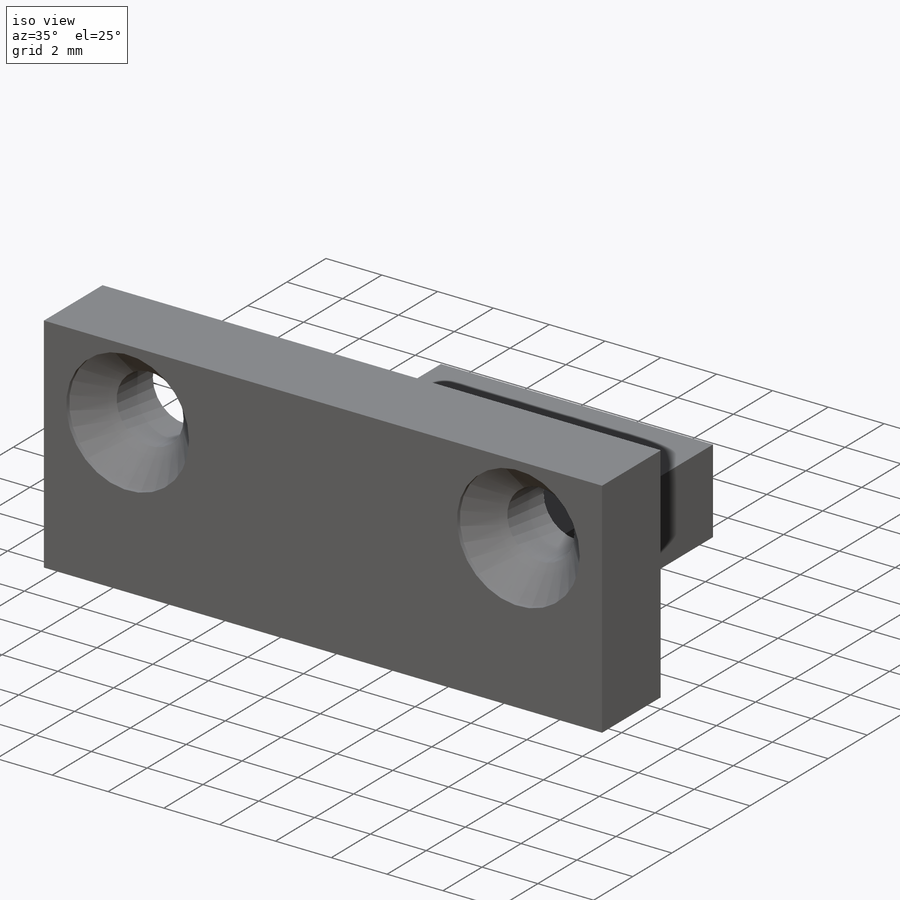
[diagram: iso view]
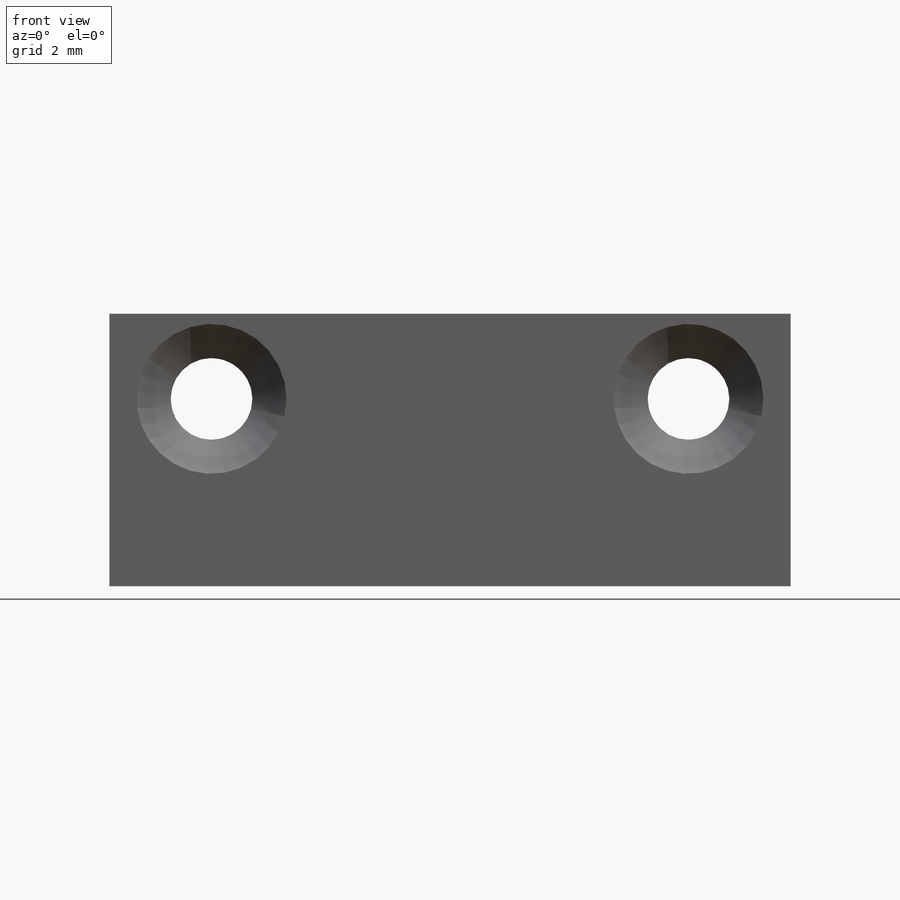
[diagram: front view]
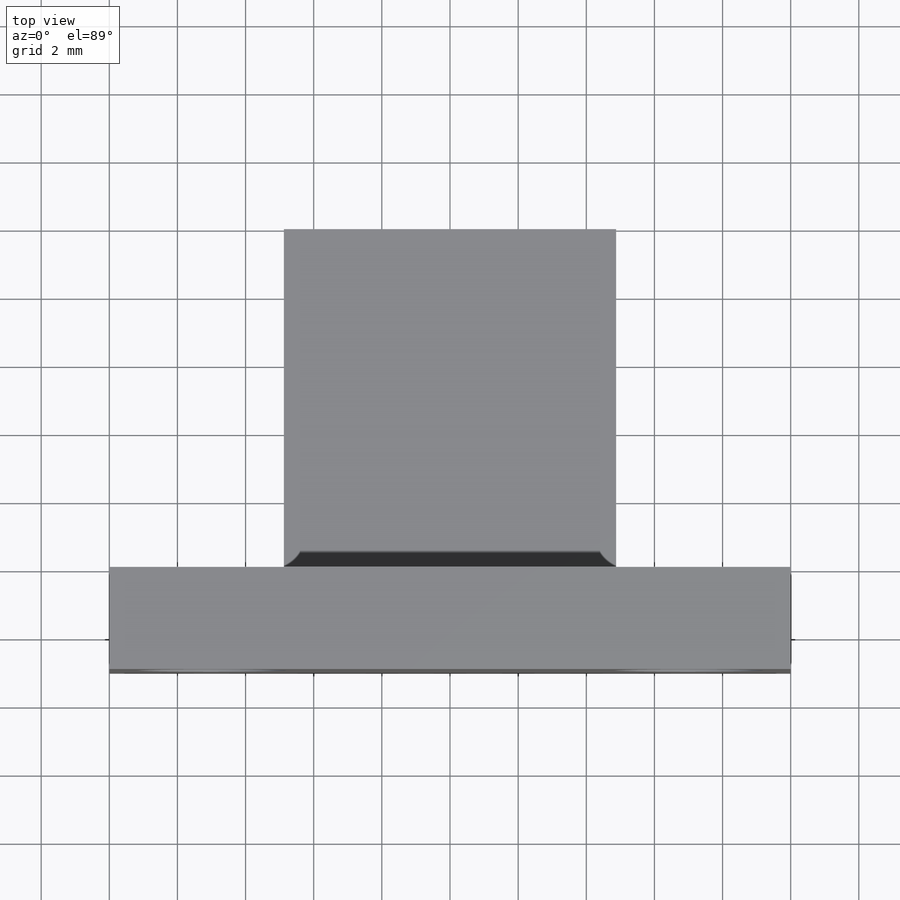
[diagram: top view]
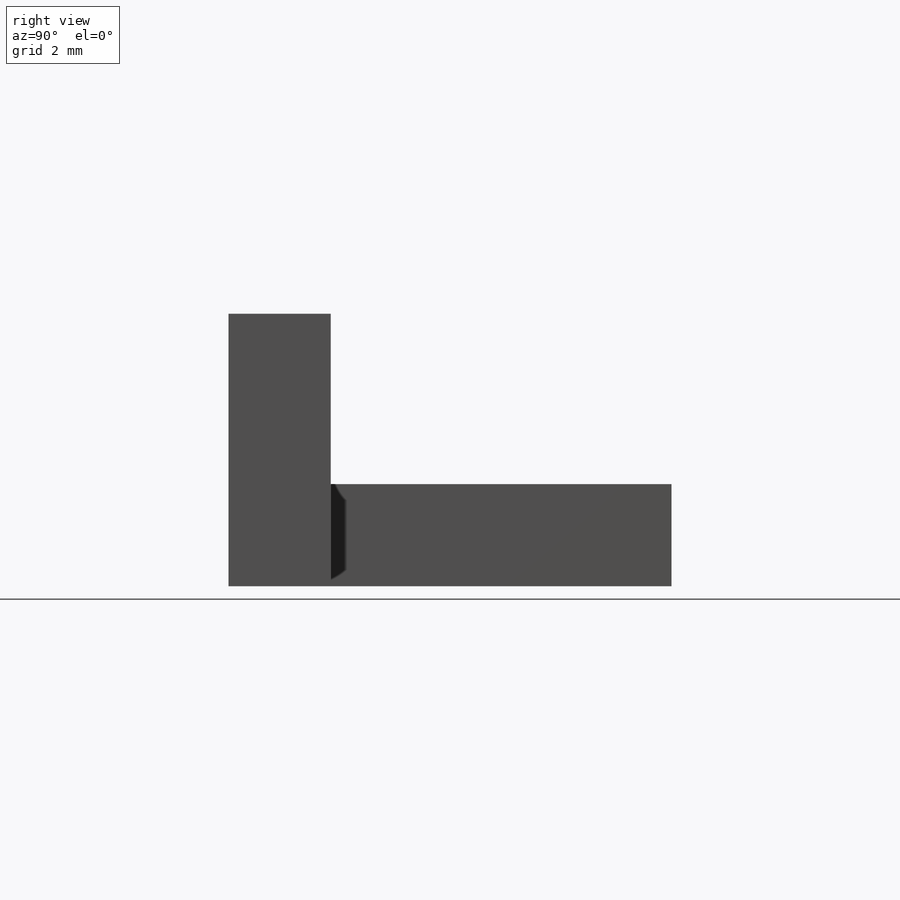
[diagram: right view]
SOLIDWORKS PART (.sldprt)
format: sldprt  version: not decoded by parser v0  size: 197,120 bytes
history: native  units: mm
features: sketch x4, material x1, extrude x1, cut_extrude x1, hole x1 (+13 scaffold rows collapsed)
feature tree (21):
  scaffold x13  (default folders/planes/origin — collapsed)
  material  "Material <not specified>"
  sketch  "Sketch1"  dims[D1=3.0mm D2=10.0mm D3=5.0mm D4=3.0mm]
  extrude  "Boss-Extrude1"  Depth=20mm
  sketch  "Sketch2"  dims[D1=9.75mm]
  cut_extrude  "Cut-Extrude1"  [1 undecoded]
  hole  "CSK for M2 Flat Head Machine Screw1"  Diameter=2.4mm Depth=20mm
  sketch  "Sketch5"  dims[D1=14.0mm D2=2.5mm]
  sketch  "Sketch4"  dims[hole-wizard template sketch: 31 standard entries collapsed; hole parameters kept: c10.Hole Dia.=2.4mm c10.Hole Depth=20.0mm c10.C'Sink Dia.=4.4mm c10.D4=~17.960512mm c10.C'Sink Angle=90.0deg c10.D5=~14.816244mm c10.Drill Angle=118.0deg c10.Head Clearance=0.15mm]
decode coverage: 6 of 7 modeling features carry decoded parameters
note: ~ marks probable driven/reference dimensions
note: 1 parameter value undecoded
note: suppression state not decoded; provenance and decode notes live in map.json
